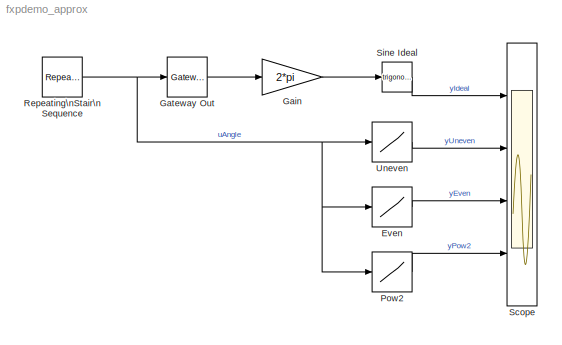
MODEL fxpdemo_approx
KIND model
CONFIG AbsTol = auto
CONFIG FixedStep = 0.01
CONFIG InitFcn = if ~exist('xuneven') | ~exist('yuneven') | ~exist('xeven') | ~exist('yeven') | ~exist('xpow2') | ~exist('ypow2'), fxpdemo_approx_sin, end
CONFIG MaxStep = auto
CONFIG MinStep = auto
CONFIG RelTol = 1e-3
CONFIG Solver = FixedStepDiscrete
CONFIG SolverMode = Auto
CONFIG StartTime = 0.0
CONFIG StopTime = 1
BLOCK [Lookup] Even
  AttributesFormatString = Sine Approx
  InputValues = xeven
  LookUpMeth = Interpolation-Use End Values
  OutDataTypeMode = Specify via dialog
  OutScaling = 2^-14
  OutputValues = yeven
  SaturateOnIntegerOverflow = off
  ShowAdditionalParam = on
BLOCK [Gain] Gain
  Gain = 2*pi
BLOCK [Reference] Gateway Out  REF=fixpt_lib_4/Data Type/Gateway Out  (lib defined in mdl_ef9dacb0d1df)
  DoSatur = off
  OutBuiltInType = double
  OutRealWorld = Real World Value
  Ports = [1, 1]
  RndMeth = Floor
  SourceBlock = fixpt_lib_4/Data Type/Gateway Out
  SourceType = Fixed-Point Gateway Out
BLOCK [Lookup] Pow2
  AttributesFormatString = Sine Approx
  InputValues = xpow2
  LookUpMeth = Interpolation-Use End Values
  OutDataTypeMode = Specify via dialog
  OutScaling = 2^-14
  OutputValues = ypow2
  SaturateOnIntegerOverflow = off
  ShowAdditionalParam = on
BLOCK [Reference] Repeating\nStair\nSequence  REF=fixpt_lib_4/Sources/Repeating\nSequence\nStair  (lib defined in mdl_ef9dacb0d1df)
  ConRadixGroup = Use Specified Scaling
  LockScale = off
  OutDataType = ufix(16)
  OutScaling = 2^-14
  OutValues = linspace(0,0.25,100).'
  OutputDataTypeScalingMode = Specify via dialog
  Ports = [0, 1]
  SourceBlock = fixpt_lib_4/Sources/Repeating\nSequence\nStair
  SourceType = Fixed-Point Repeating Sequence Stair
  tsamp = -1
BLOCK [Scope] Scope
  DataFormat = StructureWithTime
  NumInputPorts = 4
  Ports = [4]
  TimeRange = 1
  YMax = 1~1~1~1
  YMin = 0~0~0~0
BLOCK [Trigonometry] Sine Ideal
  Ports = [1, 1]
BLOCK [Lookup] Uneven
  AttributesFormatString = Sine Approx
  InputValues = xuneven
  LookUpMeth = Interpolation-Use End Values
  OutDataTypeMode = Specify via dialog
  OutScaling = 2^-14
  OutputValues = yuneven
  SaturateOnIntegerOverflow = off
  ShowAdditionalParam = on
LINE Even:1 -> Scope:3
LINE Gain:1 -> Sine Ideal:1
LINE Gateway Out:1 -> Gain:1
LINE Pow2:1 -> Scope:4
NET Repeating\nStair\nSequence:1 -> Even:1, Gateway Out:1, Pow2:1, Uneven:1
LINE Sine Ideal:1 -> Scope:1
LINE Uneven:1 -> Scope:2
note: NET lines group one-source signal fan-out (src -> all destinations, sorted); 1:1 wires keep LINE
